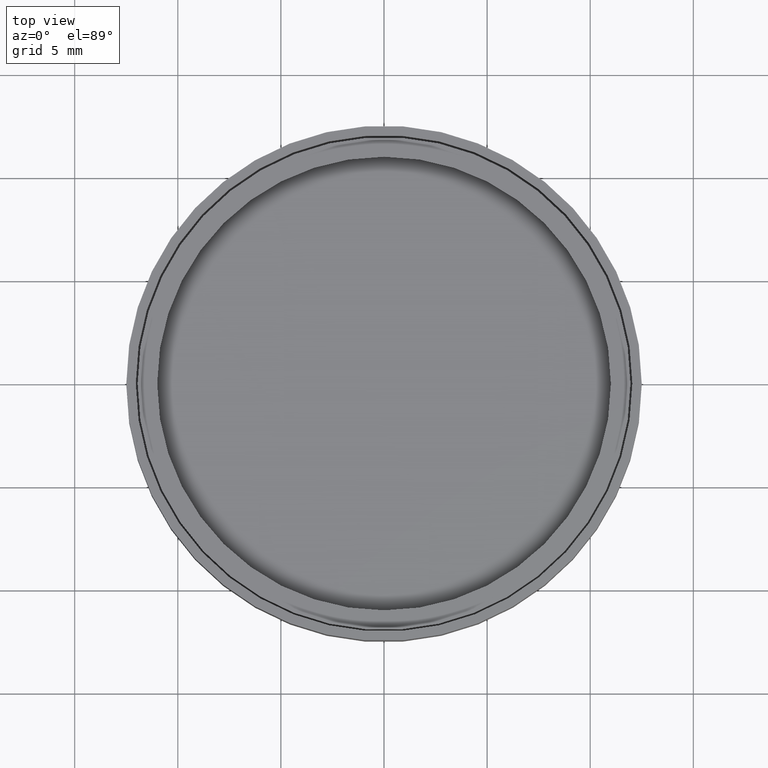
[diagram: clean part render]
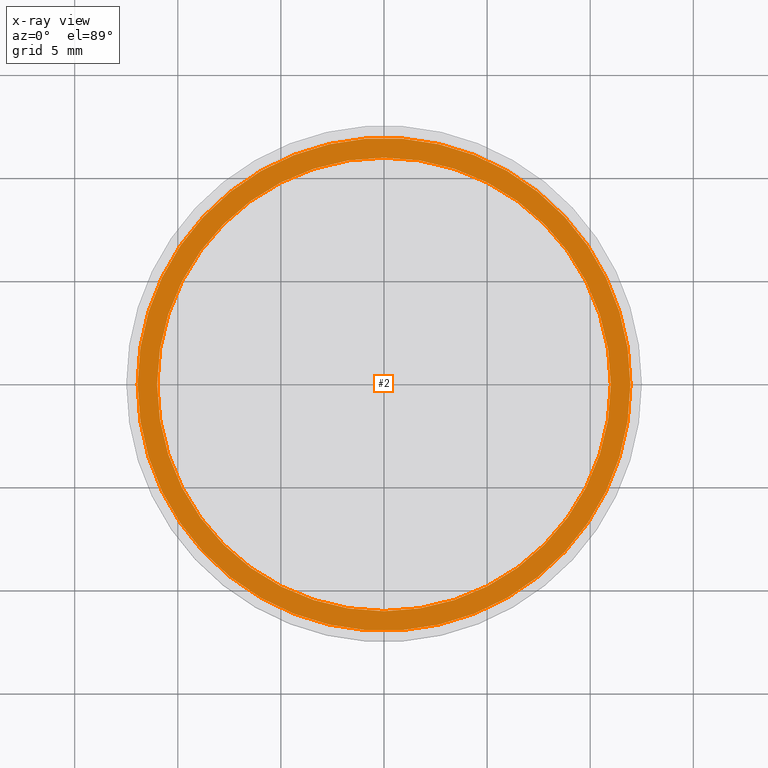
[diagram: x-ray — body ghosted, one internal face saturated and labeled with its STEP entity id]
A machine part, top view, then the same camera in x-ray: the body is ghosted and one INTERNAL B-rep face — a face not visible from any outside direction — is saturated and labeled: STEP entity #2.
In plain terms, the highlighted planar face has unit normal (0, 0, 1).
Its self-contained STEP definition (entity closure, byte-faithful):
#2 = ADVANCED_FACE ( 'NONE', ( #1009, #538 ), #868, .F. ) ;
#3 = CARTESIAN_POINT ( 'NONE',  ( 11.94999999999999900, -4.665750208063244300E-017, 0.3810000000000011200 ) ) ;
#34 = AXIS2_PLACEMENT_3D ( 'NONE', #307, #622, #1026 ) ;
#63 = AXIS2_PLACEMENT_3D ( 'NONE', #547, #782, #442 ) ;
#77 = VERTEX_POINT ( 'NONE', #88 ) ;
#88 = CARTESIAN_POINT ( 'NONE',  ( -11.94999999999999900, 1.416795422900454500E-015, 0.3810000000000011200 ) ) ;
#92 = ORIENTED_EDGE ( 'NONE', *, *, #192, .F. ) ;
#103 = VERTEX_POINT ( 'NONE', #947 ) ;
#131 = EDGE_CURVE ( 'NONE', #77, #627, #621, .T. ) ;
#173 = AXIS2_PLACEMENT_3D ( 'NONE', #927, #610, #285 ) ;
#192 = EDGE_CURVE ( 'NONE', #103, #480, #535, .T. ) ;
#251 = CARTESIAN_POINT ( 'NONE',  ( 0.0000000000000000000, 0.0000000000000000000, 0.3810000000000011200 ) ) ;
#278 = EDGE_LOOP ( 'NONE', ( #566, #989 ) ) ;
#285 = DIRECTION ( 'NONE',  ( 1.000000000000000000, 0.0000000000000000000, 0.0000000000000000000 ) ) ;
#307 = CARTESIAN_POINT ( 'NONE',  ( 0.0000000000000000000, -4.665750208063244300E-017, 0.3810000000000011200 ) ) ;
#310 = DIRECTION ( 'NONE',  ( 0.0000000000000000000, 0.0000000000000000000, 1.000000000000000000 ) ) ;
#330 = DIRECTION ( 'NONE',  ( 0.0000000000000000000, 0.0000000000000000000, -1.000000000000000000 ) ) ;
#350 = CARTESIAN_POINT ( 'NONE',  ( 11.00000000000000000, 1.347111479062088400E-015, 0.3810000000000011200 ) ) ;
#401 = CARTESIAN_POINT ( 'NONE',  ( 0.0000000000000000000, -4.665750208063244300E-017, 0.3810000000000011200 ) ) ;
#427 = CIRCLE ( 'NONE', #173, 11.94999999999999900 ) ;
#442 = DIRECTION ( 'NONE',  ( -1.000000000000000000, 0.0000000000000000000, 0.0000000000000000000 ) ) ;
#468 = CIRCLE ( 'NONE', #845, 11.00000000000000000 ) ;
#476 = DIRECTION ( 'NONE',  ( 1.000000000000000000, 0.0000000000000000000, 0.0000000000000000000 ) ) ;
#480 = VERTEX_POINT ( 'NONE', #350 ) ;
#535 = CIRCLE ( 'NONE', #63, 11.00000000000000000 ) ;
#538 = FACE_OUTER_BOUND ( 'NONE', #278, .T. ) ;
#547 = CARTESIAN_POINT ( 'NONE',  ( 0.0000000000000000000, 0.0000000000000000000, 0.3810000000000011200 ) ) ;
#566 = ORIENTED_EDGE ( 'NONE', *, *, #865, .F. ) ;
#580 = EDGE_CURVE ( 'NONE', #480, #103, #468, .T. ) ;
#610 = DIRECTION ( 'NONE',  ( 0.0000000000000000000, 0.0000000000000000000, 1.000000000000000000 ) ) ;
#621 = CIRCLE ( 'NONE', #1017, 11.94999999999999900 ) ;
#622 = DIRECTION ( 'NONE',  ( 0.0000000000000000000, 0.0000000000000000000, 1.000000000000000000 ) ) ;
#627 = VERTEX_POINT ( 'NONE', #3 ) ;
#660 = ORIENTED_EDGE ( 'NONE', *, *, #580, .F. ) ;
#782 = DIRECTION ( 'NONE',  ( 0.0000000000000000000, 0.0000000000000000000, -1.000000000000000000 ) ) ;
#803 = DIRECTION ( 'NONE',  ( -1.000000000000000000, 0.0000000000000000000, 0.0000000000000000000 ) ) ;
#845 = AXIS2_PLACEMENT_3D ( 'NONE', #251, #330, #803 ) ;
#865 = EDGE_CURVE ( 'NONE', #627, #77, #427, .T. ) ;
#868 = PLANE ( 'NONE',  #34 ) ;
#927 = CARTESIAN_POINT ( 'NONE',  ( 0.0000000000000000000, -4.665750208063244300E-017, 0.3810000000000011200 ) ) ;
#947 = CARTESIAN_POINT ( 'NONE',  ( -11.00000000000000000, 0.0000000000000000000, 0.3810000000000011200 ) ) ;
#953 = EDGE_LOOP ( 'NONE', ( #92, #660 ) ) ;
#989 = ORIENTED_EDGE ( 'NONE', *, *, #131, .F. ) ;
#1009 = FACE_BOUND ( 'NONE', #953, .T. ) ;
#1017 = AXIS2_PLACEMENT_3D ( 'NONE', #401, #310, #476 ) ;
#1026 = DIRECTION ( 'NONE',  ( 1.000000000000000000, 0.0000000000000000000, -0.0000000000000000000 ) ) ;